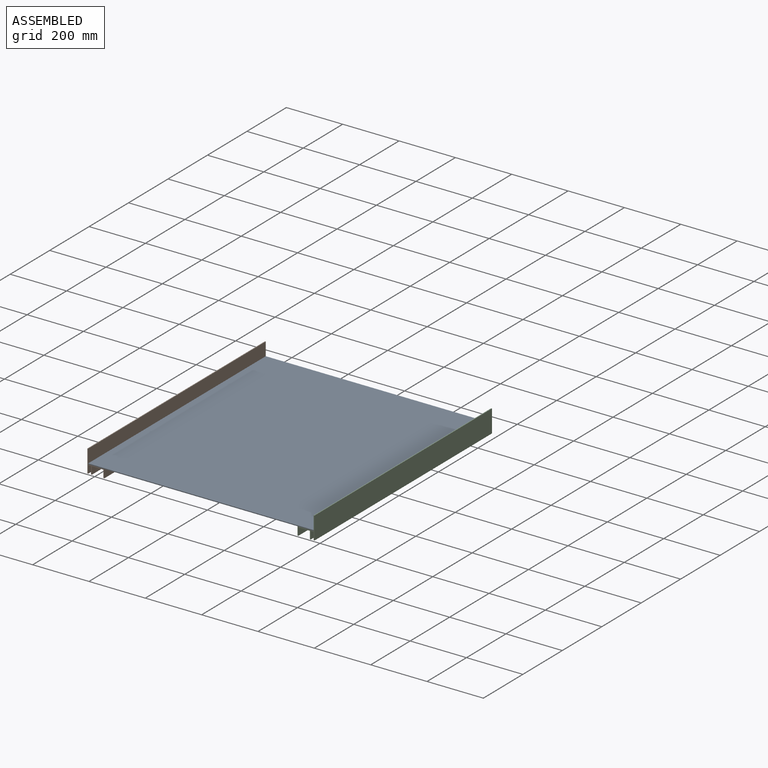
[diagram: assembled view]
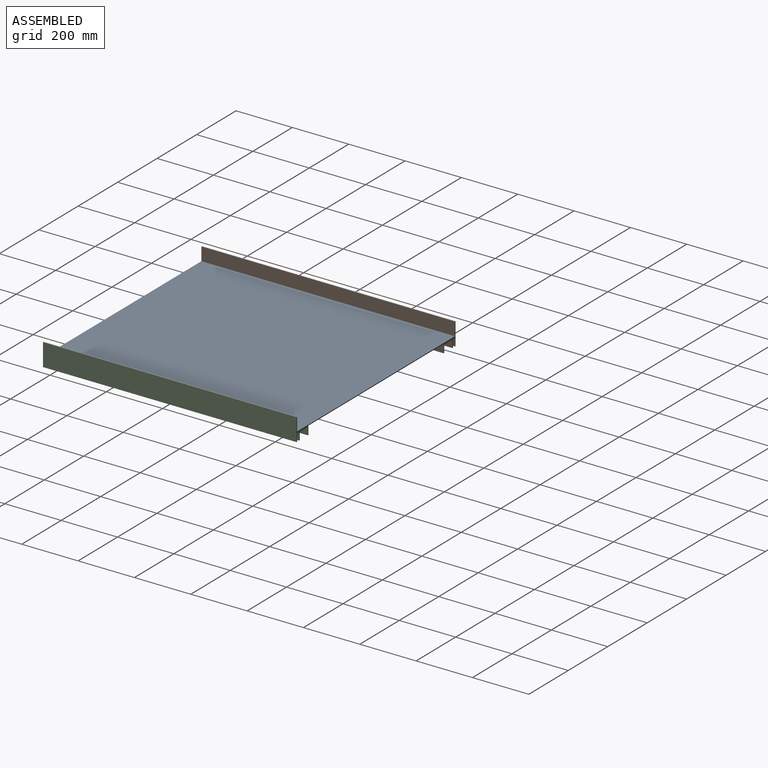
[diagram: assembled view, second angle]
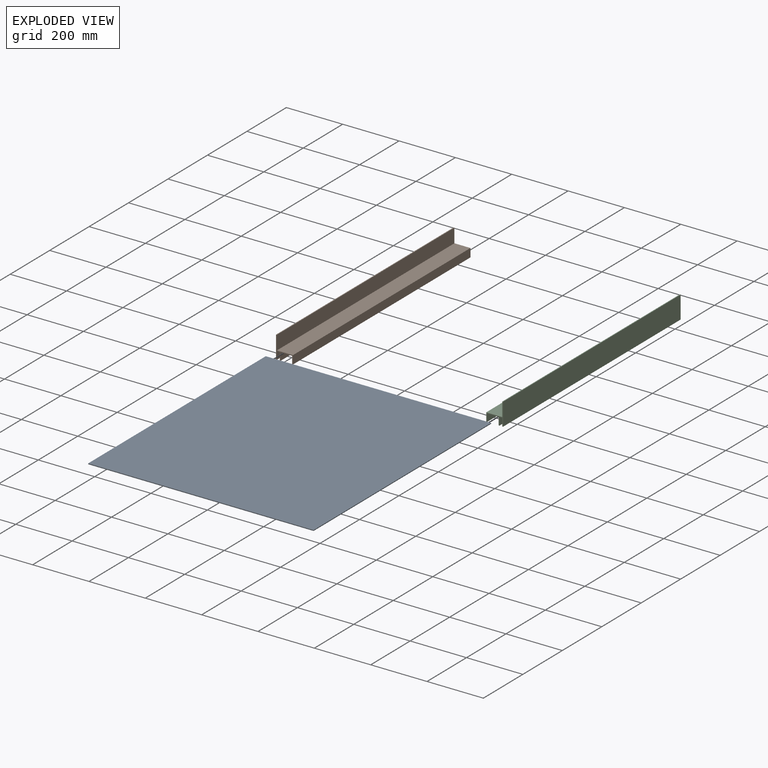
[diagram: exploded view]
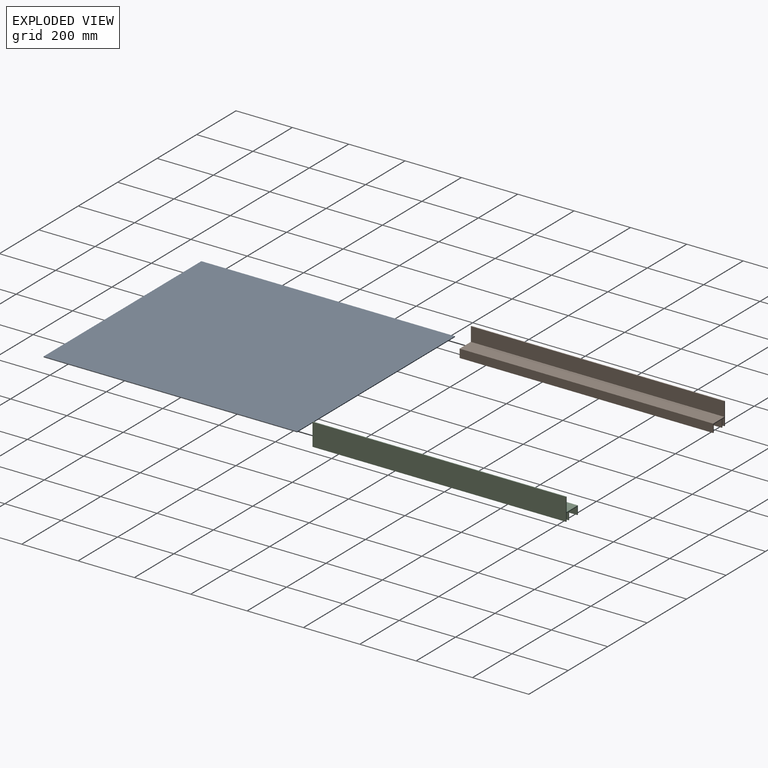
[diagram: exploded view, second angle]
ASSEMBLY  parts=3 mates=6
PART A: 6 faces, bbox 800x900x3 mm
  f0: plane 800x3mm, normal (0,1,0), area 2400mm2, adj f1,f3,f4,f5
  f1: plane 900x3mm, normal (-1,0,0), area 2700mm2, adj f0,f2,f4,f5
  f2: plane 800x3mm, normal (0,-1,0), area 2400mm2, adj f1,f3,f4,f5
  f3: plane 900x3mm, normal (1,0,0), area 2700mm2, adj f0,f2,f4,f5
  f4: plane 900x800mm, normal (0,0,1), area 720000mm2, adj f0,f1,f2,f3
  f5: plane 900x800mm, normal (0,0,-1), area 720000mm2, adj f0,f1,f2,f3
PART B: 16 faces, bbox 60x900x80 mm
  f0: plane 900x80mm, normal (1,0,0), area 72000mm2, adj f1,f13,f14,f15
  f1: plane 900x3mm, normal (0,0,1), area 2700mm2, adj f0,f2,f14,f15
  f2: plane 900x27mm, normal (-1,0,0), area 24300mm2, adj f1,f3,f14,f15
  f3: plane 900x10mm, normal (0,0,1), area 9000mm2, adj f2,f4,f14,f15
  f4: plane 900x27mm, normal (1,0,0), area 24300mm2, adj f3,f5,f14,f15
  f5: plane 900x3mm, normal (0,0,1), area 2700mm2, adj f4,f6,f14,f15
  f6: plane 900x27mm, normal (-1,0,0), area 24300mm2, adj f5,f7,f14,f15
  f7: plane 900x41mm, normal (0,0,1), area 36900mm2, adj f6,f8,f14,f15
  f8: plane 900x27mm, normal (1,0,0), area 24300mm2, adj f7,f9,f14,f15
  f9: plane 900x3mm, normal (0,0,1), area 2700mm2, adj f8,f10,f14,f15
  f10: plane 900x30mm, normal (-1,0,0), area 27000mm2, adj f9,f11,f14,f15
  f11: plane 900x57mm, normal (0,0,-1), area 51300mm2, adj f10,f12,f14,f15
  f12: plane 900x50mm, normal (-1,0,0), area 45000mm2, adj f11,f13,f14,f15
  f13: plane 900x3mm, normal (0,0,-1), area 2700mm2, adj f0,f12,f14,f15
  f14: plane 80x60mm, normal (0,-1,0), area 573mm2, adj f0,f1,f2,f3,f4,f5,f6,f7
  f15: plane 80x60mm, normal (0,1,0), area 573mm2, adj f0,f1,f2,f3,f4,f5,f6,f7
PART C: same geometry as B
PLACE A t=(-1027.34,-105.89,-53.59)mm fixed
PLACE B rot(axis=(0,1,0),180deg) t=(-1347.72,274.17,-53.59)mm
PLACE C rot(axis=(1,0,0),180deg) t=(-661.72,-625.83,-53.59)mm
MATE planar A.f2 <-> C.f15  axis (0,-1,0) through (-1004.72,-625.83,-52.09)mm
MATE planar A.f3 <-> C.f12  axis (1,0,0) through (-604.72,-175.83,-52.09)mm
MATE planar A.f2 <-> B.f14  axis (0,-1,0) through (-1004.72,-625.83,-52.09)mm
MATE planar C.f11 <-> A.f5  axis (0,0,1) through (-633.22,-625.83,-53.59)mm
MATE planar B.f12 <-> A.f1  axis (1,0,0) through (-1404.72,-175.83,-28.59)mm
MATE planar B.f11 <-> A.f5  axis (0,0,1) through (-1376.22,-175.83,-53.59)mm
